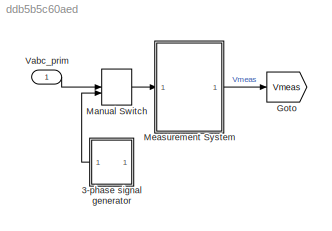
MODEL slx_ddb5b5c60aed
KIND model
CONFIG AbsTol = auto
CONFIG EnableMultiTasking = off
CONFIG FixedStep = auto
CONFIG MaxStep = auto
CONFIG MinStep = auto
CONFIG RelTol = 1e-3
CONFIG SampleTimeConstraint = Unconstrained
CONFIG SolverName = VariableStepAuto
CONFIG StartTime = 0.0
CONFIG StopTime = 10.0
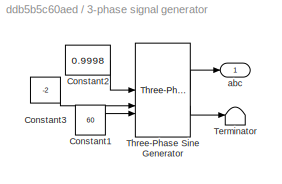
BLOCK [SubSystem] 3-phase signal generator
BLOCK [Constant] 3-phase signal generator/Constant1
  Value = 60
BLOCK [Constant] 3-phase signal generator/Constant2
  Value = 0.9998
BLOCK [Constant] 3-phase signal generator/Constant3
  Value = -2
BLOCK [Terminator] 3-phase signal generator/Terminator
BLOCK [Reference] 3-phase signal generator/Three-Phase Sine Generator  REF=spsThreePhaseSineGeneratorLib/Three-Phase
Sine Generator
  SourceBlock = spsThreePhaseSineGeneratorLib/Three-Phase\nSine Generator
  SourceType = Three-phase Sine Generator
BLOCK [Outport] 3-phase signal generator/abc
  VectorParamsAs1DForOutWhenUnconnected = off
BLOCK [Goto] Goto
  GotoTag = Vmeas
BLOCK [ManualSwitch] Manual Switch
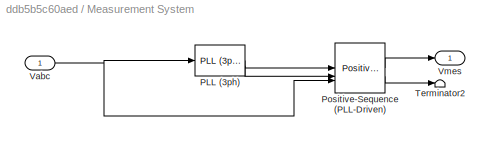
BLOCK [SubSystem] Measurement System
BLOCK [Reference] Measurement System/PLL (3ph)  REF=spsPLL3phLib/PLL
(3ph)
  SourceBlock = spsPLL3phLib/PLL\n(3ph)
  SourceType = PLL (3ph)
BLOCK [Reference] Measurement System/Positive-Sequence (PLL-Driven)  REF=spsPositiveSequencePLLDrivenLib/Positive-Sequence
(PLL-Driven)
  SourceBlock = spsPositiveSequencePLLDrivenLib/Positive-Sequence\n(PLL-Driven)
  SourceType = Positive-Sequence (PLL-Driven)
BLOCK [Terminator] Measurement System/Terminator2
BLOCK [Inport] Measurement System/Vabc
  PortDimensions = 3
BLOCK [Outport] Measurement System/Vmes
  VectorParamsAs1DForOutWhenUnconnected = off
BLOCK [Inport] Vabc_prim
  PortDimensions = 3
LINE 3-phase signal generator/Constant1:1 -> 3-phase signal generator/Three-Phase Sine Generator:3
LINE 3-phase signal generator/Constant2:1 -> 3-phase signal generator/Three-Phase Sine Generator:1
LINE 3-phase signal generator/Constant3:1 -> 3-phase signal generator/Three-Phase Sine Generator:2
LINE 3-phase signal generator/Three-Phase Sine Generator:1 -> 3-phase signal generator/abc:1
LINE 3-phase signal generator/Three-Phase Sine Generator:2 -> 3-phase signal generator/Terminator:1
LINE 3-phase signal generator:1 -> Manual Switch:2
LINE Manual Switch:1 -> Measurement System:1
LINE Measurement System/PLL (3ph):1 -> Measurement System/Positive-Sequence (PLL-Driven):1
LINE Measurement System/PLL (3ph):2 -> Measurement System/Positive-Sequence (PLL-Driven):2
LINE Measurement System/Positive-Sequence (PLL-Driven):1 -> Measurement System/Vmes:1
LINE Measurement System/Positive-Sequence (PLL-Driven):2 -> Measurement System/Terminator2:1
NET Measurement System/Vabc:1 -> Measurement System/PLL (3ph):1, Measurement System/Positive-Sequence (PLL-Driven):3
LINE Measurement System:1 -> Goto:1
LINE Vabc_prim:1 -> Manual Switch:1
note: NET lines group one-source signal fan-out (src -> all destinations, sorted); 1:1 wires keep LINE
